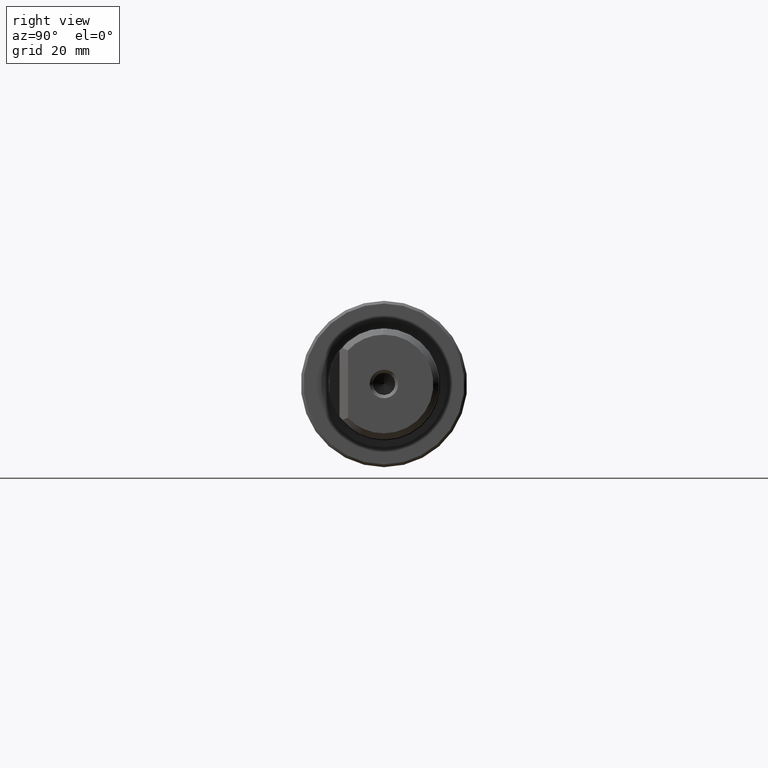
[diagram: clean part render]
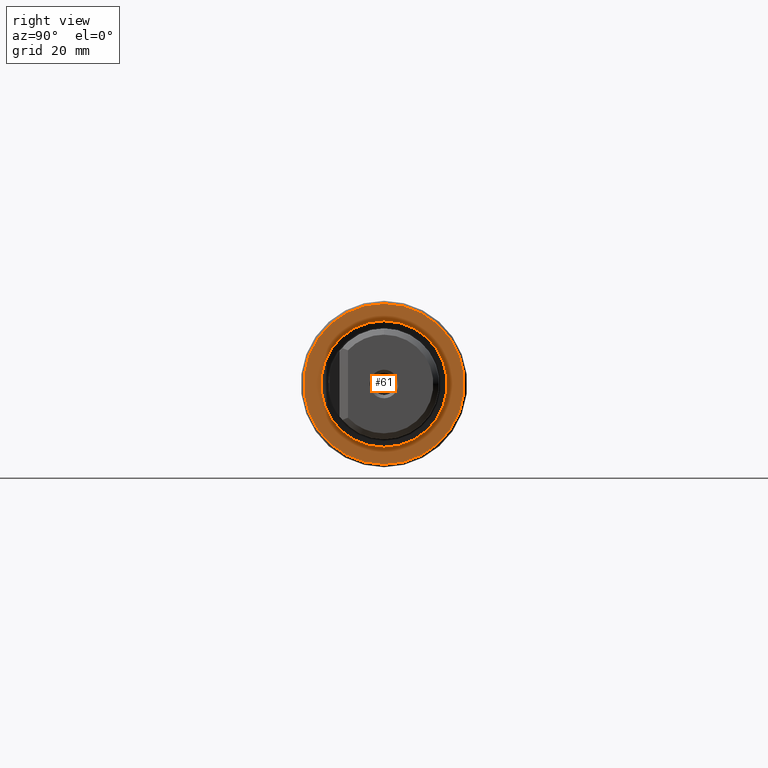
[diagram: same view with one face highlighted and labeled with its STEP entity id]
A machine part, right view. The second image highlights one B-rep face of the part: STEP entity #61.
In plain terms, the highlighted planar face has unit normal (-1, 0, -0).
Its self-contained STEP definition (entity closure, byte-faithful):
#2 = EDGE_CURVE ( 'NONE', #584, #75, #253, .T. ) ;
#30 = DIRECTION ( 'NONE',  ( 0.0000000000000000000, 0.0000000000000000000, 1.000000000000000000 ) ) ;
#60 = EDGE_CURVE ( 'NONE', #75, #584, #886, .T. ) ;
#61 = ADVANCED_FACE ( 'NONE', ( #902, #847 ), #357, .F. ) ;
#63 = DIRECTION ( 'NONE',  ( -1.000000000000000000, 0.0000000000000000000, -0.0000000000000000000 ) ) ;
#75 = VERTEX_POINT ( 'NONE', #168 ) ;
#103 = VERTEX_POINT ( 'NONE', #1105 ) ;
#154 = DIRECTION ( 'NONE',  ( 1.000000000000000000, -0.0000000000000000000, -0.0000000000000000000 ) ) ;
#168 = CARTESIAN_POINT ( 'NONE',  ( 74.45000000000000300, 1.396097351027984000E-015, 11.40000000000001100 ) ) ;
#233 = ORIENTED_EDGE ( 'NONE', *, *, #60, .F. ) ;
#253 = CIRCLE ( 'NONE', #362, 11.40000000000001100 ) ;
#264 = EDGE_CURVE ( 'NONE', #1018, #103, #677, .T. ) ;
#339 = CARTESIAN_POINT ( 'NONE',  ( 74.45000000000000300, 0.0000000000000000000, 0.0000000000000000000 ) ) ;
#357 = PLANE ( 'NONE',  #996 ) ;
#362 = AXIS2_PLACEMENT_3D ( 'NONE', #339, #154, #524 ) ;
#372 = ORIENTED_EDGE ( 'NONE', *, *, #955, .T. ) ;
#422 = DIRECTION ( 'NONE',  ( 0.0000000000000000000, 0.0000000000000000000, 1.000000000000000000 ) ) ;
#522 = DIRECTION ( 'NONE',  ( 1.000000000000000000, 0.0000000000000000000, 0.0000000000000000000 ) ) ;
#524 = DIRECTION ( 'NONE',  ( 0.0000000000000000000, 0.0000000000000000000, -1.000000000000000000 ) ) ;
#535 = CARTESIAN_POINT ( 'NONE',  ( 74.45000000000000300, 0.0000000000000000000, 0.0000000000000000000 ) ) ;
#584 = VERTEX_POINT ( 'NONE', #1058 ) ;
#611 = AXIS2_PLACEMENT_3D ( 'NONE', #535, #1207, #637 ) ;
#637 = DIRECTION ( 'NONE',  ( 0.0000000000000000000, 0.0000000000000000000, -1.000000000000000000 ) ) ;
#677 = CIRCLE ( 'NONE', #843, 14.49999999999999600 ) ;
#690 = DIRECTION ( 'NONE',  ( 1.000000000000000000, 0.0000000000000000000, 0.0000000000000000000 ) ) ;
#733 = DIRECTION ( 'NONE',  ( -0.0000000000000000000, 0.0000000000000000000, 1.000000000000000000 ) ) ;
#741 = EDGE_LOOP ( 'NONE', ( #785, #233 ) ) ;
#773 = AXIS2_PLACEMENT_3D ( 'NONE', #1192, #522, #422 ) ;
#785 = ORIENTED_EDGE ( 'NONE', *, *, #2, .F. ) ;
#843 = AXIS2_PLACEMENT_3D ( 'NONE', #1067, #690, #30 ) ;
#847 = FACE_OUTER_BOUND ( 'NONE', #1090, .T. ) ;
#886 = CIRCLE ( 'NONE', #611, 11.40000000000001100 ) ;
#902 = FACE_BOUND ( 'NONE', #741, .T. ) ;
#955 = EDGE_CURVE ( 'NONE', #103, #1018, #1076, .T. ) ;
#975 = ORIENTED_EDGE ( 'NONE', *, *, #264, .T. ) ;
#992 = CARTESIAN_POINT ( 'NONE',  ( 74.45000000000000300, 1.806354028742345800E-015, -14.49999999999999600 ) ) ;
#996 = AXIS2_PLACEMENT_3D ( 'NONE', #1017, #63, #733 ) ;
#1017 = CARTESIAN_POINT ( 'NONE',  ( 74.45000000000000300, 10.10000000000001000, 0.0000000000000000000 ) ) ;
#1018 = VERTEX_POINT ( 'NONE', #992 ) ;
#1058 = CARTESIAN_POINT ( 'NONE',  ( 74.45000000000000300, 0.0000000000000000000, -11.40000000000001100 ) ) ;
#1067 = CARTESIAN_POINT ( 'NONE',  ( 74.45000000000000300, 0.0000000000000000000, 0.0000000000000000000 ) ) ;
#1076 = CIRCLE ( 'NONE', #773, 14.49999999999999600 ) ;
#1090 = EDGE_LOOP ( 'NONE', ( #372, #975 ) ) ;
#1105 = CARTESIAN_POINT ( 'NONE',  ( 74.45000000000000300, 0.0000000000000000000, 14.49999999999999600 ) ) ;
#1192 = CARTESIAN_POINT ( 'NONE',  ( 74.45000000000000300, 0.0000000000000000000, 0.0000000000000000000 ) ) ;
#1207 = DIRECTION ( 'NONE',  ( 1.000000000000000000, -0.0000000000000000000, -0.0000000000000000000 ) ) ;